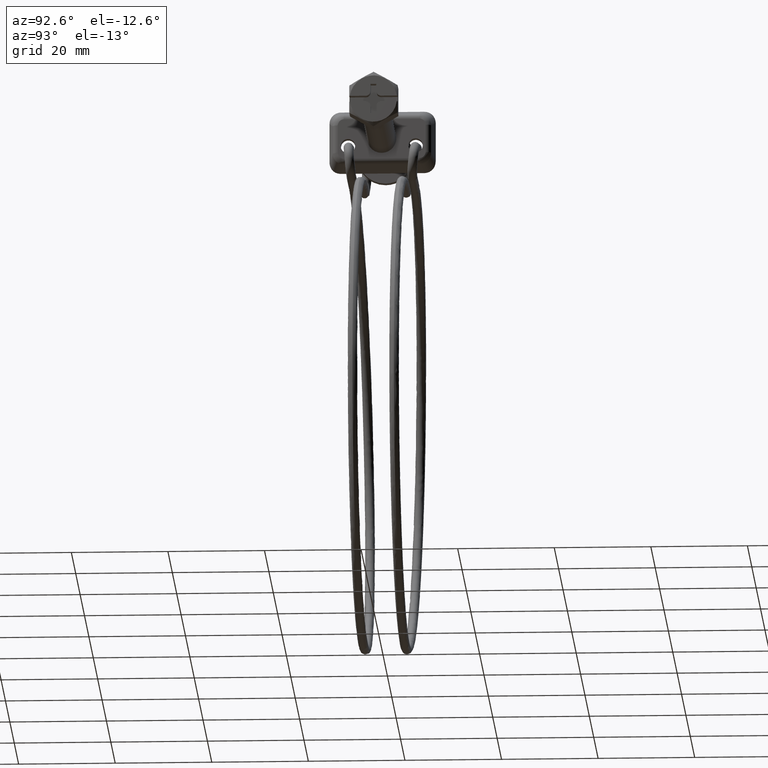
[diagram: clean part render]
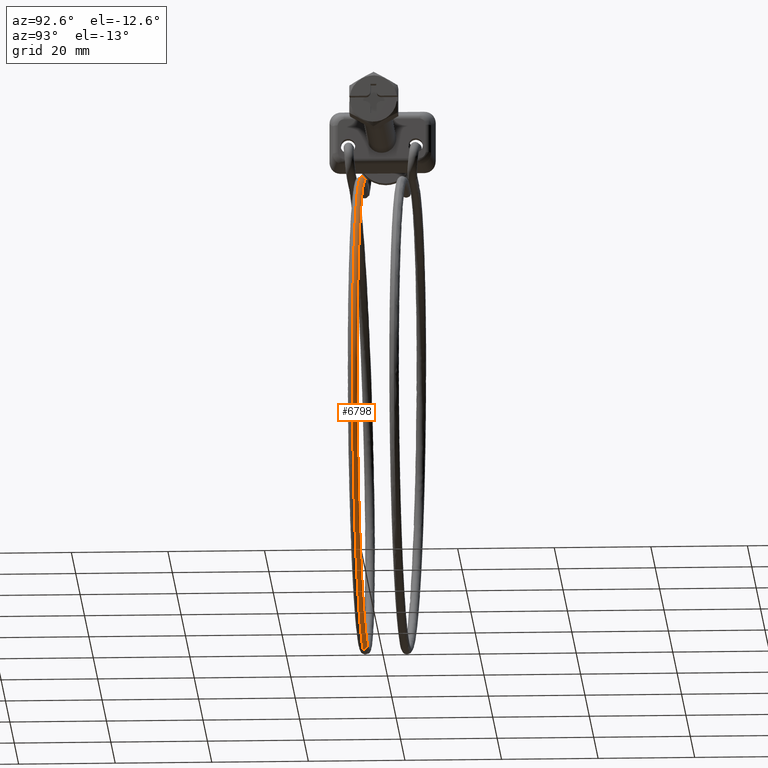
[diagram: same view with one face highlighted and labeled with its STEP entity id]
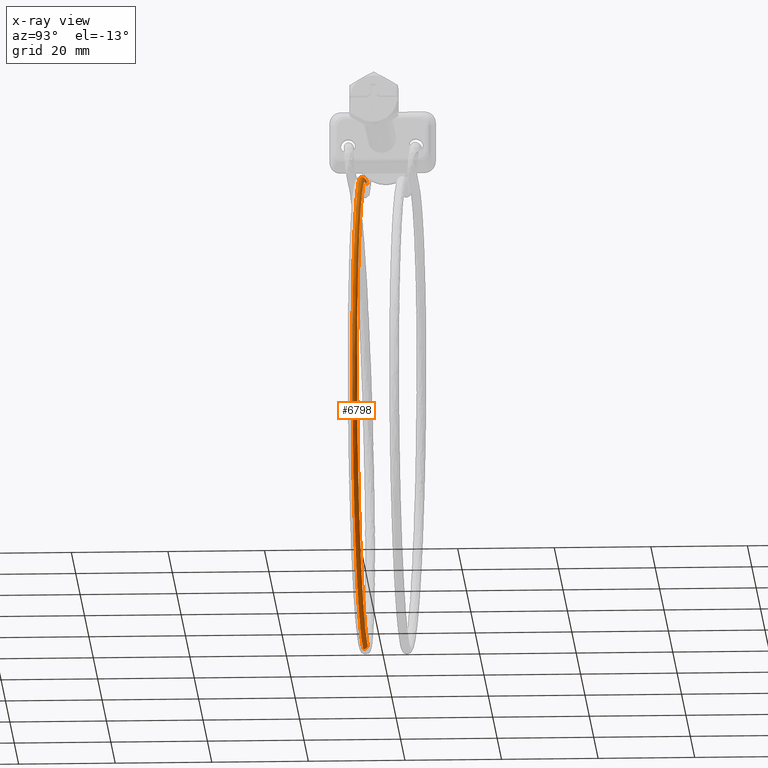
[diagram: x-ray of the same camera — body ghosted, the highlighted face saturated]
A machine part, auxiliary view. The second image highlights one B-rep face of the part: STEP entity #6798.
The next image is the same camera in x-ray: the body ghosted, the highlighted face saturated — about 0% of this face is hidden behind the body in this view.
In plain terms, the highlighted face is a freeform B-spline surface patch.
Its self-contained STEP definition (entity closure, byte-faithful):
#4866=CARTESIAN_POINT('',(-44.550031668978178,-4.300003842810893,-6.850001000023840));
#4867=VERTEX_POINT('',#4866);
#4883=CARTESIAN_POINT('',(-44.549999960691139,-3.364492666772311,-7.496699022304137));
#4884=VERTEX_POINT('',#4883);
#4885=CARTESIAN_POINT('',(-44.549999960691132,-3.364492666772312,-7.496699022304137));
#4886=CARTESIAN_POINT('',(-44.550015779105500,-3.608723857553120,-6.850001005529913));
#4887=CARTESIAN_POINT('',(-44.550031668978178,-4.300003842810893,-6.850001000023840));
#4895=(BOUNDED_CURVE()B_SPLINE_CURVE(2,(#4885,#4886,#4887),.UNSPECIFIED.,.F.,.U.)B_SPLINE_CURVE_WITH_KNOTS((3,3),(0.810000003725111,1.0),.UNSPECIFIED.)CURVE()GEOMETRIC_REPRESENTATION_ITEM()RATIONAL_B_SPLINE_CURVE((0.893152549238044,0.777401158066015,1.0))REPRESENTATION_ITEM(''));
#4896=EDGE_CURVE('',#4884,#4867,#4895,.T.);
#6672=CARTESIAN_POINT('',(-44.549999999946593,-3.364945210144687,-105.203131635885600));
#6673=VERTEX_POINT('',#6672);
#6674=CARTESIAN_POINT('',(-44.549999960691139,-3.364492666772312,-7.496699022304137));
#6675=CARTESIAN_POINT('',(4.611224696077035,-3.364492666772404,-7.496699062131425));
#6676=CARTESIAN_POINT('',(4.302337644170731,-3.364720360155988,-56.656867120331043));
#6677=CARTESIAN_POINT('',(3.997307919506157,-3.364945210144595,-105.203131635832510));
#6678=CARTESIAN_POINT('',(-44.549999999946586,-3.364945210144687,-105.203131635885550));
#6686=(BOUNDED_CURVE()B_SPLINE_CURVE(2,(#6674,#6675,#6676,#6677,#6678),.UNSPECIFIED.,.F.,.U.)B_SPLINE_CURVE_WITH_KNOTS((3,2,3),(-3.795101888460282,-2.0,-0.220236089795971),.UNSPECIFIED.)CURVE()GEOMETRIC_REPRESENTATION_ITEM()RATIONAL_B_SPLINE_CURVE((0.834864093970131,0.608677214454739,0.893152553776853,0.611107871230832,0.831036135745171))REPRESENTATION_ITEM(''));
#6687=EDGE_CURVE('',#4884,#6673,#6686,.T.);
#6715=CARTESIAN_POINT('',(-44.549999999973110,-4.300002000000002,-105.850001000000110));
#6716=VERTEX_POINT('',#6715);
#6726=CARTESIAN_POINT('',(-44.550031668978178,-4.300003842810894,-6.850001000023840));
#6727=CARTESIAN_POINT('',(5.261999072745956,-4.300003842811192,-6.849969131415447));
#6728=CARTESIAN_POINT('',(4.949022912364716,-4.300002915615830,-56.661016626301993));
#6729=CARTESIAN_POINT('',(4.639955341282293,-4.300001999999708,-105.850000999945490));
#6730=CARTESIAN_POINT('',(-44.549999999973110,-4.300002000000002,-105.850001000000060));
#6738=(BOUNDED_CURVE()B_SPLINE_CURVE(2,(#6726,#6727,#6728,#6729,#6730),.UNSPECIFIED.,.F.,.U.)B_SPLINE_CURVE_WITH_KNOTS((3,2,3),(-3.795102672138129,-2.0,-0.220236089795989),.UNSPECIFIED.)CURVE()GEOMETRIC_REPRESENTATION_ITEM()RATIONAL_B_SPLINE_CURVE((0.934738738561743,0.681492862209253,1.0,0.684214436432676,0.930452622265910))REPRESENTATION_ITEM(''));
#6739=EDGE_CURVE('',#4867,#6716,#6738,.T.);
#6746=CARTESIAN_POINT('',(-51.550138445614849,-4.306110364242833,-7.347469823108594));
#6747=CARTESIAN_POINT('',(5.309909647084099,-4.306110364242832,0.775135256951296));
#6748=CARTESIAN_POINT('',(4.949022912378780,-4.306110364242830,-56.661016626295243));
#6749=CARTESIAN_POINT('',(4.592434419722077,-4.306110364242831,-113.413091043139760));
#6750=CARTESIAN_POINT('',(-51.584719593580793,-4.306110364242832,-105.347579718133560));
#6751=CARTESIAN_POINT('',(-51.550138445614863,-4.302697185324071,-7.347469823108597));
#6752=CARTESIAN_POINT('',(5.309909647084099,-4.302697185324070,0.775135256951296));
#6753=CARTESIAN_POINT('',(4.949022912378781,-4.302697185324071,-56.661016626295279));
#6754=CARTESIAN_POINT('',(4.592434419722078,-4.302697185324069,-113.413091043139760));
#6755=CARTESIAN_POINT('',(-51.584719593580800,-4.302697185324069,-105.347579718133550));
#6756=CARTESIAN_POINT('',(-51.550138445614863,-3.608722931955907,-7.347469823108596));
#6757=CARTESIAN_POINT('',(5.309909647084100,-3.608722931955907,0.775135256951296));
#6758=CARTESIAN_POINT('',(4.949022912378780,-3.608722931955907,-56.661016626295265));
#6759=CARTESIAN_POINT('',(4.592434419722078,-3.608722931955908,-113.413091043139800));
#6760=CARTESIAN_POINT('',(-51.584719593580800,-3.608722931955908,-105.347579718133600));
#6761=CARTESIAN_POINT('',(-51.457981544092725,-3.362615696299361,-7.992588698269359));
#6762=CARTESIAN_POINT('',(4.653503374701320,-3.362615696299360,0.023082194376668));
#6763=CARTESIAN_POINT('',(4.297367717925281,-3.362615696299362,-56.656922102070197));
#6764=CARTESIAN_POINT('',(3.945473716792860,-3.362615696299361,-112.661854819669260));
#6765=CARTESIAN_POINT('',(-51.492107430855953,-3.362615696299361,-104.702526042148160));
#6766=CARTESIAN_POINT('',(-51.456506987074640,-3.358677856099196,-8.002910926438375));
#6767=CARTESIAN_POINT('',(4.643000542469942,-3.358677856099197,0.011048965144042));
#6768=CARTESIAN_POINT('',(4.286940905342875,-3.358677856099197,-56.656856587612438));
#6769=CARTESIAN_POINT('',(3.935122018448335,-3.358677856099198,-112.649834660275300));
#6770=CARTESIAN_POINT('',(-51.490625589428454,-3.358677856099196,-104.692204857198900));
#6771=CARTESIAN_POINT('',(-51.455735620257450,-3.356617902347274,-8.008310666286651));
#6772=CARTESIAN_POINT('',(4.637506325447133,-3.356617902347273,0.004754170422696));
#6773=CARTESIAN_POINT('',(4.281486455540969,-3.356617902347273,-56.656822315842589));
#6774=CARTESIAN_POINT('',(3.929706862230799,-3.356617902347276,-112.643546702617400));
#6775=CARTESIAN_POINT('',(-51.489850412008039,-3.356617902347273,-104.686805663077290));
#6783=(BOUNDED_SURFACE()B_SPLINE_SURFACE(2,2,((#6746,#6751,#6756,#6761,#6766,#6771),(#6747,#6752,#6757,#6762,#6767,#6772),(#6748,#6753,#6758,#6763,#6768,#6773),(#6749,#6754,#6759,#6764,#6769,#6774),(#6750,#6755,#6760,#6765,#6770,#6775)),.UNSPECIFIED.,.F.,.F.,.U.)B_SPLINE_SURFACE_WITH_KNOTS((3,2,3),(3,1,1,1,3),(0.0,90.744798107824494,180.784346074461810),(0.0,0.007101932936569,1.253611171697431,1.264629899154075,1.276810431657918),.UNSPECIFIED.)GEOMETRIC_REPRESENTATION_ITEM()RATIONAL_B_SPLINE_SURFACE(((0.992993241978595,0.991885918081807,0.770232424949947,0.885930197229753,0.888064625066011,0.889185284418117),(0.651262405775446,0.650536158713021,0.505162976819102,0.581044268183852,0.582444149420532,0.583179142645917),(1.002235260033447,1.001117630016723,0.777401156495024,0.894175754734073,0.896330048184482,0.897461137772694),(0.653990095518324,0.653260806707066,0.507278756661654,0.583477862502254,0.584883606877442,0.585621678483314),(0.987723356543363,0.986621909292889,0.766144746941284,0.881228502952649,0.883351603229272,0.884466315162858)))REPRESENTATION_ITEM('')SURFACE());
#6784=ORIENTED_EDGE('',*,*,#4896,.T.);
#6785=ORIENTED_EDGE('',*,*,#6739,.T.);
#6786=CARTESIAN_POINT('',(-44.549999999946593,-3.364945210144687,-105.203131635885600));
#6787=CARTESIAN_POINT('',(-44.549999999949307,-3.415054867127593,-105.335349654642800));
#6788=CARTESIAN_POINT('',(-44.549999999952412,-3.492539150079379,-105.457238662659900));
#6789=CARTESIAN_POINT('',(-44.549999999961663,-3.777820058850053,-105.742301835923300));
#6790=CARTESIAN_POINT('',(-44.549999999968101,-4.038116918531992,-105.850033442921800));
#6791=CARTESIAN_POINT('',(-44.549999999973110,-4.300002000000002,-105.850001000000110));
#6792=B_SPLINE_CURVE_WITH_KNOTS('',3,(#6786,#6787,#6788,#6789,#6790,#6791),.UNSPECIFIED.,.F.,.U.,(4,2,4),(0.807474354679053,0.875000000000000,1.0),.UNSPECIFIED.);
#6793=EDGE_CURVE('',#6673,#6716,#6792,.T.);
#6794=ORIENTED_EDGE('',*,*,#6793,.F.);
#6795=ORIENTED_EDGE('',*,*,#6687,.F.);
#6796=EDGE_LOOP('',(#6784,#6785,#6794,#6795));
#6797=FACE_OUTER_BOUND('',#6796,.T.);
#6798=ADVANCED_FACE('',(#6797),#6783,.T.);